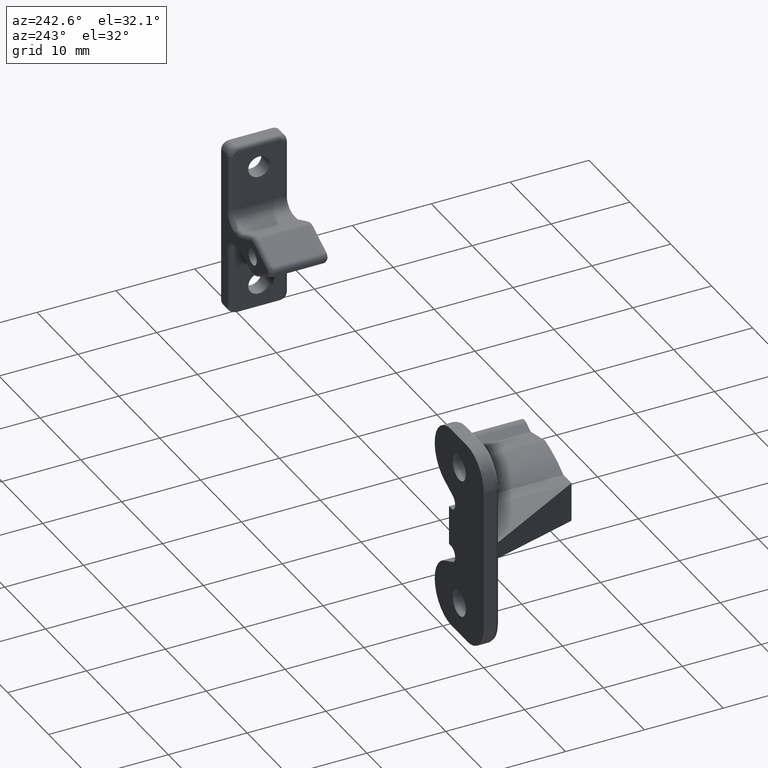
[diagram: clean part render]
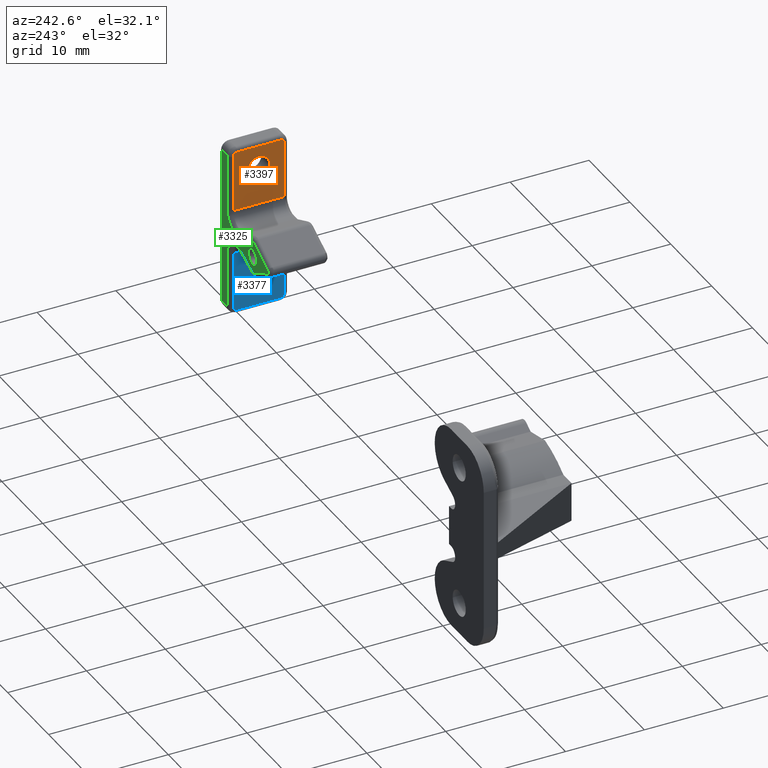
[diagram: same view with three faces highlighted in distinct colors, each labeled with its STEP entity id]
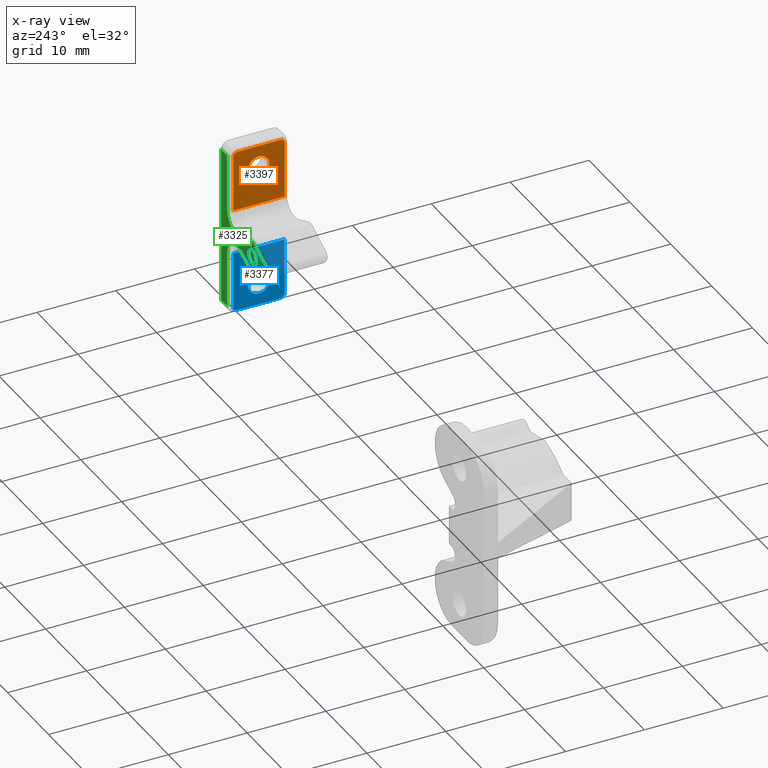
[diagram: x-ray of the same camera — body ghosted, the three highlighted faces saturated]
A machine part, auxiliary view with three faces highlighted in distinct colors.
The next image is the same camera in x-ray (body ghosted, the three faces saturated) — at least one of them is partly hidden behind the body in this view.
Their STEP definitions:

[orange] entity #3397 — the highlighted face is a freeform B-spline surface patch.
#267=CARTESIAN_POINT('',(74.781404293552868,-8.909437139445036,7.909346217089359));
#268=VERTEX_POINT('',#267);
#274=CARTESIAN_POINT('',(74.781404293552896,-10.250000000000000,6.400000000000000));
#275=VERTEX_POINT('',#274);
#276=CARTESIAN_POINT('',(74.781404293552868,-8.909437139445036,7.909346217089359));
#277=CARTESIAN_POINT('',(74.781404293552910,-8.900000000000000,7.829952561836014));
#278=CARTESIAN_POINT('',(74.781404293552896,-8.900000000000000,7.750000000000000));
#279=CARTESIAN_POINT('',(74.781404293552896,-8.900000000000000,6.400000000000000));
#280=CARTESIAN_POINT('',(74.781404293552896,-10.250000000000000,6.400000000000000));
#288=(BOUNDED_CURVE()B_SPLINE_CURVE(2,(#276,#277,#278,#279,#280),.UNSPECIFIED.,.F.,.U.)B_SPLINE_CURVE_WITH_KNOTS((3,2,3),(0.229562473439313,0.250000000000000,0.500000000000000),.UNSPECIFIED.)CURVE()GEOMETRIC_REPRESENTATION_ITEM()RATIONAL_B_SPLINE_CURVE((0.956026754038274,0.976055948244220,1.0,0.707106781186548,1.0))REPRESENTATION_ITEM(''));
#289=EDGE_CURVE('',#268,#275,#288,.T.);
#291=CARTESIAN_POINT('',(74.781404293552896,-11.597481977852460,7.667584471348922));
#292=VERTEX_POINT('',#291);
#293=CARTESIAN_POINT('',(74.781404293552896,-10.250000000000000,6.400000000000000));
#294=CARTESIAN_POINT('',(74.781404293552882,-11.519953189795775,6.400000000000000));
#295=CARTESIAN_POINT('',(74.781404293552896,-11.597481977852453,7.667584471348922));
#303=(BOUNDED_CURVE()B_SPLINE_CURVE(2,(#293,#294,#295),.UNSPECIFIED.,.F.,.U.)B_SPLINE_CURVE_WITH_KNOTS((3,3),(0.500000000000000,0.739332962170511),.UNSPECIFIED.)CURVE()GEOMETRIC_REPRESENTATION_ITEM()RATIONAL_B_SPLINE_CURVE((1.0,0.719603993366883,0.976072041520055))REPRESENTATION_ITEM(''));
#304=EDGE_CURVE('',#275,#292,#303,.T.);
#378=CARTESIAN_POINT('',(74.781404293552896,-10.250000000000000,9.100000000000000));
#379=VERTEX_POINT('',#378);
#380=CARTESIAN_POINT('',(74.781404293552896,-11.597481977852453,7.667584471348923));
#381=CARTESIAN_POINT('',(74.781404293552882,-11.600000000000005,7.708753769267101));
#382=CARTESIAN_POINT('',(74.781404293552896,-11.600000000000000,7.750000000000000));
#383=CARTESIAN_POINT('',(74.781404293552896,-11.600000000000001,9.100000000000000));
#384=CARTESIAN_POINT('',(74.781404293552896,-10.250000000000000,9.100000000000000));
#392=(BOUNDED_CURVE()B_SPLINE_CURVE(2,(#380,#381,#382,#383,#384),.UNSPECIFIED.,.F.,.U.)B_SPLINE_CURVE_WITH_KNOTS((3,2,3),(0.739332962170510,0.750000000000000,1.0),.UNSPECIFIED.)CURVE()GEOMETRIC_REPRESENTATION_ITEM()RATIONAL_B_SPLINE_CURVE((0.976072041520053,0.987502787819664,1.0,0.707106781186548,1.0))REPRESENTATION_ITEM(''));
#393=EDGE_CURVE('',#292,#379,#392,.T.);
#395=CARTESIAN_POINT('',(74.781404293552896,-10.250000000000000,9.100000000000000));
#396=CARTESIAN_POINT('',(74.781404293552896,-9.050964390511018,9.100000000000000));
#397=CARTESIAN_POINT('',(74.781404293552868,-8.909437139445036,7.909346217089359));
#405=(BOUNDED_CURVE()B_SPLINE_CURVE(2,(#395,#396,#397),.UNSPECIFIED.,.F.,.U.)B_SPLINE_CURVE_WITH_KNOTS((3,3),(0.0,0.229562473439313),.UNSPECIFIED.)CURVE()GEOMETRIC_REPRESENTATION_ITEM()RATIONAL_B_SPLINE_CURVE((1.0,0.731050832942328,0.956026754038274))REPRESENTATION_ITEM(''));
#406=EDGE_CURVE('',#379,#268,#405,.T.);
#983=CARTESIAN_POINT('',(74.781404293552896,-7.500000000000000,10.500000000000000));
#984=VERTEX_POINT('',#983);
#1013=CARTESIAN_POINT('',(74.781404293552896,-7.000000000000120,10.0));
#1014=VERTEX_POINT('',#1013);
#1028=CARTESIAN_POINT('',(74.781404293552896,-6.999999999999999,10.0));
#1029=CARTESIAN_POINT('',(74.781404293552896,-6.999999999999999,10.500000000000002));
#1030=CARTESIAN_POINT('',(74.781404293552896,-7.500000000000000,10.500000000000000));
#1038=(BOUNDED_CURVE()B_SPLINE_CURVE(2,(#1028,#1029,#1030),.UNSPECIFIED.,.F.,.U.)CURVE()GEOMETRIC_REPRESENTATION_ITEM()QUASI_UNIFORM_CURVE()RATIONAL_B_SPLINE_CURVE((1.0,0.707106781186548,1.0))REPRESENTATION_ITEM(''));
#1039=EDGE_CURVE('',#1014,#984,#1038,.T.);
#1132=CARTESIAN_POINT('',(74.781404293552896,-13.000000000000121,10.500000000000000));
#1133=VERTEX_POINT('',#1132);
#1149=CARTESIAN_POINT('',(74.781404293552896,-13.500000000000000,10.0));
#1150=VERTEX_POINT('',#1149);
#1151=CARTESIAN_POINT('',(74.781404293552896,-13.000000000000121,10.500000000000000));
#1152=CARTESIAN_POINT('',(74.781404293552910,-13.500000000000000,10.499999999999881));
#1153=CARTESIAN_POINT('',(74.781404293552896,-13.500000000000000,10.0));
#1161=(BOUNDED_CURVE()B_SPLINE_CURVE(2,(#1151,#1152,#1153),.UNSPECIFIED.,.F.,.U.)CURVE()GEOMETRIC_REPRESENTATION_ITEM()QUASI_UNIFORM_CURVE()RATIONAL_B_SPLINE_CURVE((1.0,0.707106781186632,1.0))REPRESENTATION_ITEM(''));
#1162=EDGE_CURVE('',#1133,#1150,#1161,.T.);
#1573=CARTESIAN_POINT('',(74.781404293552896,-13.000000000000121,10.500000000000000));
#1574=CARTESIAN_POINT('',(74.781404293552896,-7.500000000000000,10.500000000000000));
#1575=QUASI_UNIFORM_CURVE('',1,(#1573,#1574),.UNSPECIFIED.,.F.,.U.);
#1576=EDGE_CURVE('',#1133,#984,#1575,.T.);
#2313=CARTESIAN_POINT('',(74.781404293552896,-7.000000000000120,2.849976000000000));
#2314=VERTEX_POINT('',#2313);
#2448=CARTESIAN_POINT('',(74.781404293552896,-7.000000000000120,10.0));
#2449=CARTESIAN_POINT('',(74.781404293552896,-7.000000000000120,2.849976000000000));
#2450=QUASI_UNIFORM_CURVE('',1,(#2448,#2449),.UNSPECIFIED.,.F.,.U.);
#2451=EDGE_CURVE('',#1014,#2314,#2450,.T.);
#2482=CARTESIAN_POINT('',(74.781404293552896,-13.500000000000000,2.849976000000000));
#2483=VERTEX_POINT('',#2482);
#2594=CARTESIAN_POINT('',(74.781404293552896,-13.500000000000000,2.849976000000000));
#2595=CARTESIAN_POINT('',(74.781404293552896,-13.500000000000000,10.0));
#2596=QUASI_UNIFORM_CURVE('',1,(#2594,#2595),.UNSPECIFIED.,.F.,.U.);
#2597=EDGE_CURVE('',#2483,#1150,#2596,.T.);
#3049=CARTESIAN_POINT('',(74.781404293552896,-13.500000000000000,2.849976000000000));
#3050=CARTESIAN_POINT('',(74.781404293552896,-7.000000000000120,2.849976000000000));
#3051=QUASI_UNIFORM_CURVE('',1,(#3049,#3050),.UNSPECIFIED.,.F.,.U.);
#3052=EDGE_CURVE('',#2483,#2314,#3051,.T.);
#3378=CARTESIAN_POINT('',(74.781404293552896,-13.824674987401730,10.882118683972770));
#3379=CARTESIAN_POINT('',(74.781404293552896,-13.824674987401730,2.467857110837597));
#3380=CARTESIAN_POINT('',(74.781404293552896,-6.675324838254800,10.882118683972770));
#3381=CARTESIAN_POINT('',(74.781404293552896,-6.675324838254800,2.467857110837597));
#3382=B_SPLINE_SURFACE_WITH_KNOTS('',1,1,((#3378,#3380),(#3379,#3381)),.UNSPECIFIED.,.F.,.F.,.U.,(2,2),(2,2),(0.0,8.414261573135173),(0.0,7.149350149146932),.UNSPECIFIED.);
#3383=ORIENTED_EDGE('',*,*,#1162,.F.);
#3384=ORIENTED_EDGE('',*,*,#1576,.T.);
#3385=ORIENTED_EDGE('',*,*,#1039,.F.);
#3386=ORIENTED_EDGE('',*,*,#2451,.T.);
#3387=ORIENTED_EDGE('',*,*,#3052,.F.);
#3388=ORIENTED_EDGE('',*,*,#2597,.T.);
#3389=EDGE_LOOP('',(#3383,#3384,#3385,#3386,#3387,#3388));
#3390=FACE_OUTER_BOUND('',#3389,.T.);
#3391=ORIENTED_EDGE('',*,*,#304,.F.);
#3392=ORIENTED_EDGE('',*,*,#289,.F.);
#3393=ORIENTED_EDGE('',*,*,#406,.F.);
#3394=ORIENTED_EDGE('',*,*,#393,.F.);
#3395=EDGE_LOOP('',(#3391,#3392,#3393,#3394));
#3396=FACE_BOUND('',#3395,.T.);
#3397=ADVANCED_FACE('',(#3390,#3396),#3382,.F.);

[blue] entity #3377 — the highlighted face is a freeform B-spline surface patch.
#79=CARTESIAN_POINT('',(74.781404293552896,-8.904161599466004,-7.855919779305352));
#80=VERTEX_POINT('',#79);
#86=CARTESIAN_POINT('',(74.781404293552896,-10.250000000000000,-9.100000000000000));
#87=VERTEX_POINT('',#86);
#88=CARTESIAN_POINT('',(74.781404293552896,-10.250000000000000,-9.100000000000000));
#89=CARTESIAN_POINT('',(74.781404293552896,-9.002072836396774,-9.100000000000000));
#90=CARTESIAN_POINT('',(74.781404293552896,-8.904161599466004,-7.855919779305352));
#98=(BOUNDED_CURVE()B_SPLINE_CURVE(2,(#88,#89,#90),.UNSPECIFIED.,.F.,.U.)B_SPLINE_CURVE_WITH_KNOTS((3,3),(0.0,0.236331300614231),.UNSPECIFIED.)CURVE()GEOMETRIC_REPRESENTATION_ITEM()RATIONAL_B_SPLINE_CURVE((1.0,0.723120658626913,0.969723356133133))REPRESENTATION_ITEM(''));
#99=EDGE_CURVE('',#87,#80,#98,.T.);
#101=CARTESIAN_POINT('',(74.781404293552896,-11.595838400533999,-7.644080220694649));
#102=VERTEX_POINT('',#101);
#103=CARTESIAN_POINT('',(74.781404293552896,-11.595838400533999,-7.644080220694649));
#104=CARTESIAN_POINT('',(74.781404293552896,-11.600000000000005,-7.696958355466547));
#105=CARTESIAN_POINT('',(74.781404293552896,-11.600000000000000,-7.750000000000000));
#106=CARTESIAN_POINT('',(74.781404293552896,-11.600000000000001,-9.100000000000000));
#107=CARTESIAN_POINT('',(74.781404293552896,-10.250000000000000,-9.100000000000000));
#115=(BOUNDED_CURVE()B_SPLINE_CURVE(2,(#103,#104,#105,#106,#107),.UNSPECIFIED.,.F.,.U.)B_SPLINE_CURVE_WITH_KNOTS((3,2,3),(0.736331300614231,0.750000000000000,1.0),.UNSPECIFIED.)CURVE()GEOMETRIC_REPRESENTATION_ITEM()RATIONAL_B_SPLINE_CURVE((0.969723356133133,0.983986122559635,1.0,0.707106781186548,1.0))REPRESENTATION_ITEM(''));
#116=EDGE_CURVE('',#102,#87,#115,.T.);
#192=CARTESIAN_POINT('',(74.781404293552896,-10.250000000000000,-6.400000000000000));
#193=VERTEX_POINT('',#192);
#194=CARTESIAN_POINT('',(74.781404293552896,-10.250000000000000,-6.400000000000000));
#195=CARTESIAN_POINT('',(74.781404293552896,-11.497927163603235,-6.400000000000000));
#196=CARTESIAN_POINT('',(74.781404293552896,-11.595838400533999,-7.644080220694649));
#204=(BOUNDED_CURVE()B_SPLINE_CURVE(2,(#194,#195,#196),.UNSPECIFIED.,.F.,.U.)B_SPLINE_CURVE_WITH_KNOTS((3,3),(0.500000000000000,0.736331300614232),.UNSPECIFIED.)CURVE()GEOMETRIC_REPRESENTATION_ITEM()RATIONAL_B_SPLINE_CURVE((1.0,0.723120658626912,0.969723356133135))REPRESENTATION_ITEM(''));
#205=EDGE_CURVE('',#193,#102,#204,.T.);
#207=CARTESIAN_POINT('',(74.781404293552896,-8.904161599466004,-7.855919779305352));
#208=CARTESIAN_POINT('',(74.781404293552896,-8.900000000000002,-7.803041644533454));
#209=CARTESIAN_POINT('',(74.781404293552896,-8.900000000000000,-7.750000000000000));
#210=CARTESIAN_POINT('',(74.781404293552896,-8.900000000000000,-6.400000000000000));
#211=CARTESIAN_POINT('',(74.781404293552896,-10.250000000000000,-6.400000000000000));
#219=(BOUNDED_CURVE()B_SPLINE_CURVE(2,(#207,#208,#209,#210,#211),.UNSPECIFIED.,.F.,.U.)B_SPLINE_CURVE_WITH_KNOTS((3,2,3),(0.236331300614231,0.250000000000000,0.500000000000000),.UNSPECIFIED.)CURVE()GEOMETRIC_REPRESENTATION_ITEM()RATIONAL_B_SPLINE_CURVE((0.969723356133133,0.983986122559635,1.0,0.707106781186548,1.0))REPRESENTATION_ITEM(''));
#220=EDGE_CURVE('',#80,#193,#219,.T.);
#1273=CARTESIAN_POINT('',(74.781404293552896,-7.500000000000000,-10.500000000000000));
#1274=VERTEX_POINT('',#1273);
#1290=CARTESIAN_POINT('',(74.781404293552896,-7.000000000000120,-10.0));
#1291=VERTEX_POINT('',#1290);
#1292=CARTESIAN_POINT('',(74.781404293552896,-7.500000000000000,-10.500000000000000));
#1293=CARTESIAN_POINT('',(74.781404293552896,-6.999999999999999,-10.500000000000002));
#1294=CARTESIAN_POINT('',(74.781404293552896,-6.999999999999999,-10.0));
#1302=(BOUNDED_CURVE()B_SPLINE_CURVE(2,(#1292,#1293,#1294),.UNSPECIFIED.,.F.,.U.)CURVE()GEOMETRIC_REPRESENTATION_ITEM()QUASI_UNIFORM_CURVE()RATIONAL_B_SPLINE_CURVE((1.0,0.707106781186548,1.0))REPRESENTATION_ITEM(''));
#1303=EDGE_CURVE('',#1274,#1291,#1302,.T.);
#1418=CARTESIAN_POINT('',(74.781404293552896,-13.0,-10.500000000000000));
#1419=VERTEX_POINT('',#1418);
#1448=CARTESIAN_POINT('',(74.781404293552896,-13.500000000000000,-10.0));
#1449=VERTEX_POINT('',#1448);
#1463=CARTESIAN_POINT('',(74.781404293552896,-13.500000000000000,-10.0));
#1464=CARTESIAN_POINT('',(74.781404293552896,-13.500000000000000,-10.500000000000002));
#1465=CARTESIAN_POINT('',(74.781404293552896,-13.0,-10.500000000000000));
#1473=(BOUNDED_CURVE()B_SPLINE_CURVE(2,(#1463,#1464,#1465),.UNSPECIFIED.,.F.,.U.)CURVE()GEOMETRIC_REPRESENTATION_ITEM()QUASI_UNIFORM_CURVE()RATIONAL_B_SPLINE_CURVE((1.0,0.707106781186548,1.0))REPRESENTATION_ITEM(''));
#1474=EDGE_CURVE('',#1449,#1419,#1473,.T.);
#1544=CARTESIAN_POINT('',(74.781404293552896,-7.500000000000000,-10.500000000000000));
#1545=CARTESIAN_POINT('',(74.781404293552896,-13.0,-10.500000000000000));
#1546=QUASI_UNIFORM_CURVE('',1,(#1544,#1545),.UNSPECIFIED.,.F.,.U.);
#1547=EDGE_CURVE('',#1274,#1419,#1546,.T.);
#1953=CARTESIAN_POINT('',(74.781398293552996,-7.000000000000120,-2.850006000000000));
#1954=VERTEX_POINT('',#1953);
#2065=CARTESIAN_POINT('',(74.781398293552996,-7.000000000000120,-2.850006000000000));
#2066=CARTESIAN_POINT('',(74.781404293552896,-7.000000000000120,-10.0));
#2067=QUASI_UNIFORM_CURVE('',1,(#2065,#2066),.UNSPECIFIED.,.F.,.U.);
#2068=EDGE_CURVE('',#1954,#1291,#2067,.T.);
#2927=CARTESIAN_POINT('',(74.781398293552996,-13.500000000000000,-2.850006000000000));
#2928=VERTEX_POINT('',#2927);
#2988=CARTESIAN_POINT('',(74.781404293552896,-13.500000000000000,-10.0));
#2989=CARTESIAN_POINT('',(74.781398293552996,-13.500000000000000,-2.850006000000000));
#2990=QUASI_UNIFORM_CURVE('',1,(#2988,#2989),.UNSPECIFIED.,.F.,.U.);
#2991=EDGE_CURVE('',#1449,#2928,#2990,.T.);
#3148=CARTESIAN_POINT('',(74.781398293552996,-13.500000000000000,-2.850006000000000));
#3149=CARTESIAN_POINT('',(74.781398293552996,-7.000000000000120,-2.850006000000000));
#3150=QUASI_UNIFORM_CURVE('',1,(#3148,#3149),.UNSPECIFIED.,.F.,.U.);
#3151=EDGE_CURVE('',#2928,#1954,#3150,.T.);
#3358=CARTESIAN_POINT('',(74.781404293552896,-13.824674987401730,-2.467888886339843));
#3359=CARTESIAN_POINT('',(74.781404293552896,-13.824674987401730,-10.882117387245261));
#3360=CARTESIAN_POINT('',(74.781404293552896,-6.675324838254800,-2.467888886339843));
#3361=CARTESIAN_POINT('',(74.781404293552896,-6.675324838254800,-10.882117387245261));
#3362=B_SPLINE_SURFACE_WITH_KNOTS('',1,1,((#3358,#3360),(#3359,#3361)),.UNSPECIFIED.,.F.,.F.,.U.,(2,2),(2,2),(0.0,8.414228500905418),(0.0,7.149350149146932),.UNSPECIFIED.);
#3363=ORIENTED_EDGE('',*,*,#1474,.F.);
#3364=ORIENTED_EDGE('',*,*,#2991,.T.);
#3365=ORIENTED_EDGE('',*,*,#3151,.T.);
#3366=ORIENTED_EDGE('',*,*,#2068,.T.);
#3367=ORIENTED_EDGE('',*,*,#1303,.F.);
#3368=ORIENTED_EDGE('',*,*,#1547,.T.);
#3369=EDGE_LOOP('',(#3363,#3364,#3365,#3366,#3367,#3368));
#3370=FACE_OUTER_BOUND('',#3369,.T.);
#3371=ORIENTED_EDGE('',*,*,#205,.T.);
#3372=ORIENTED_EDGE('',*,*,#116,.T.);
#3373=ORIENTED_EDGE('',*,*,#99,.T.);
#3374=ORIENTED_EDGE('',*,*,#220,.T.);
#3375=EDGE_LOOP('',(#3371,#3372,#3373,#3374));
#3376=FACE_BOUND('',#3375,.T.);
#3377=ADVANCED_FACE('',(#3370,#3376),#3362,.F.);

[green] entity #3325 — the highlighted face is a freeform B-spline surface patch.
#430=CARTESIAN_POINT('',(69.081407293552900,-6.500000000000170,1.0));
#431=VERTEX_POINT('',#430);
#432=CARTESIAN_POINT('',(68.084489959867142,-6.500000000000170,0.078459096329595));
#433=VERTEX_POINT('',#432);
#434=CARTESIAN_POINT('',(69.081407293552900,-6.500000000000170,1.0));
#435=CARTESIAN_POINT('',(68.157016803014088,-6.500000000000169,1.0));
#436=CARTESIAN_POINT('',(68.084489959867142,-6.500000000000170,0.078459096329595));
#444=(BOUNDED_CURVE()B_SPLINE_CURVE(2,(#434,#435,#436),.UNSPECIFIED.,.F.,.U.)B_SPLINE_CURVE_WITH_KNOTS((3,3),(0.0,0.236331300425819),.UNSPECIFIED.)CURVE()GEOMETRIC_REPRESENTATION_ITEM()RATIONAL_B_SPLINE_CURVE((1.0,0.723120658847651,0.969723355739932))REPRESENTATION_ITEM(''));
#445=EDGE_CURVE('',#431,#433,#444,.T.);
#447=CARTESIAN_POINT('',(70.078324627238658,-6.500000000000171,-0.078459096329595));
#448=VERTEX_POINT('',#447);
#449=CARTESIAN_POINT('',(70.078324627238658,-6.500000000000171,-0.078459096329595));
#450=CARTESIAN_POINT('',(70.081407293552900,-6.500000000000170,-0.039290107612212));
#451=CARTESIAN_POINT('',(70.081407293552900,-6.500000000000170,0.0));
#452=CARTESIAN_POINT('',(70.081407293552900,-6.500000000000169,1.0));
#453=CARTESIAN_POINT('',(69.081407293552900,-6.500000000000170,1.0));
#461=(BOUNDED_CURVE()B_SPLINE_CURVE(2,(#449,#450,#451,#452,#453),.UNSPECIFIED.,.F.,.U.)B_SPLINE_CURVE_WITH_KNOTS((3,2,3),(0.736331300425820,0.750000000000000,1.0),.UNSPECIFIED.)CURVE()GEOMETRIC_REPRESENTATION_ITEM()RATIONAL_B_SPLINE_CURVE((0.969723355739932,0.983986122338897,1.0,0.707106781186548,1.0))REPRESENTATION_ITEM(''));
#462=EDGE_CURVE('',#448,#431,#461,.T.);
#529=CARTESIAN_POINT('',(69.081407293552900,-6.500000000000170,-1.0));
#530=VERTEX_POINT('',#529);
#531=CARTESIAN_POINT('',(68.084489959867142,-6.500000000000170,0.078459096329595));
#532=CARTESIAN_POINT('',(68.081407293552900,-6.500000000000170,0.039290107612212));
#533=CARTESIAN_POINT('',(68.081407293552900,-6.500000000000170,0.0));
#534=CARTESIAN_POINT('',(68.081407293552900,-6.500000000000169,-1.0));
#535=CARTESIAN_POINT('',(69.081407293552900,-6.500000000000170,-1.0));
#543=(BOUNDED_CURVE()B_SPLINE_CURVE(2,(#531,#532,#533,#534,#535),.UNSPECIFIED.,.F.,.U.)B_SPLINE_CURVE_WITH_KNOTS((3,2,3),(0.236331300425820,0.250000000000000,0.500000000000000),.UNSPECIFIED.)CURVE()GEOMETRIC_REPRESENTATION_ITEM()RATIONAL_B_SPLINE_CURVE((0.969723355739932,0.983986122338897,1.0,0.707106781186548,1.0))REPRESENTATION_ITEM(''));
#544=EDGE_CURVE('',#433,#530,#543,.T.);
#578=CARTESIAN_POINT('',(69.081407293552900,-6.500000000000170,-1.0));
#579=CARTESIAN_POINT('',(70.005797784091726,-6.500000000000169,-1.0));
#580=CARTESIAN_POINT('',(70.078324627238658,-6.500000000000171,-0.078459096329595));
#588=(BOUNDED_CURVE()B_SPLINE_CURVE(2,(#578,#579,#580),.UNSPECIFIED.,.F.,.U.)B_SPLINE_CURVE_WITH_KNOTS((3,3),(0.500000000000000,0.736331300425821),.UNSPECIFIED.)CURVE()GEOMETRIC_REPRESENTATION_ITEM()RATIONAL_B_SPLINE_CURVE((1.0,0.723120658847650,0.969723355739934))REPRESENTATION_ITEM(''));
#589=EDGE_CURVE('',#530,#448,#588,.T.);
#640=CARTESIAN_POINT('',(69.081384218248175,-6.500000000000105,2.050000829597402));
#641=VERTEX_POINT('',#640);
#657=CARTESIAN_POINT('',(68.852169493230889,-6.500000000000090,1.994362549565610));
#658=VERTEX_POINT('',#657);
#659=CARTESIAN_POINT('',(68.852169493230903,-6.500000000000090,1.994362549565582));
#660=CARTESIAN_POINT('',(68.960024193398795,-6.500000000000090,2.050000838512738));
#661=CARTESIAN_POINT('',(69.081384218248175,-6.500000000000105,2.050000829597402));
#669=(BOUNDED_CURVE()B_SPLINE_CURVE(2,(#659,#660,#661),.UNSPECIFIED.,.F.,.U.)B_SPLINE_CURVE_WITH_KNOTS((3,3),(0.0,0.532488025251343),.UNSPECIFIED.)CURVE()GEOMETRIC_REPRESENTATION_ITEM()RATIONAL_B_SPLINE_CURVE((1.0,0.947741838454572,0.951137367398325))REPRESENTATION_ITEM(''));
#670=EDGE_CURVE('',#658,#641,#669,.T.);
#734=CARTESIAN_POINT('',(69.283986150942994,-6.500000000000090,2.007118662710400));
#735=VERTEX_POINT('',#734);
#751=CARTESIAN_POINT('',(69.081384218248175,-6.500000000000105,2.050000829597402));
#752=CARTESIAN_POINT('',(69.187224719983249,-6.500000000000097,2.050003931687976));
#753=CARTESIAN_POINT('',(69.283986150942994,-6.500000000000090,2.007118662710400));
#761=(BOUNDED_CURVE()B_SPLINE_CURVE(2,(#751,#752,#753),.UNSPECIFIED.,.F.,.U.)B_SPLINE_CURVE_WITH_KNOTS((3,3),(0.532488025251343,1.0),.UNSPECIFIED.)CURVE()GEOMETRIC_REPRESENTATION_ITEM()RATIONAL_B_SPLINE_CURVE((0.951137367398325,0.954118562029061,1.0))REPRESENTATION_ITEM(''));
#762=EDGE_CURVE('',#641,#735,#761,.T.);
#998=CARTESIAN_POINT('',(75.281404293552896,-6.500000000000090,10.0));
#999=VERTEX_POINT('',#998);
#1058=CARTESIAN_POINT('',(76.781404293552896,-6.500000000000170,10.0));
#1059=VERTEX_POINT('',#1058);
#1075=CARTESIAN_POINT('',(75.281404293552896,-6.500000000000090,10.0));
#1076=CARTESIAN_POINT('',(76.781404293552896,-6.500000000000170,10.0));
#1077=QUASI_UNIFORM_CURVE('',1,(#1075,#1076),.UNSPECIFIED.,.F.,.U.);
#1078=EDGE_CURVE('',#999,#1059,#1077,.T.);
#1305=CARTESIAN_POINT('',(75.281404293552896,-6.500000000000090,-10.0));
#1306=VERTEX_POINT('',#1305);
#1354=CARTESIAN_POINT('',(76.781404293552896,-6.500000000000170,-10.0));
#1355=VERTEX_POINT('',#1354);
#1375=CARTESIAN_POINT('',(76.781404293552896,-6.500000000000170,-10.0));
#1376=CARTESIAN_POINT('',(75.281404293552896,-6.500000000000090,-10.0));
#1377=QUASI_UNIFORM_CURVE('',1,(#1375,#1376),.UNSPECIFIED.,.F.,.U.);
#1378=EDGE_CURVE('',#1355,#1306,#1377,.T.);
#1598=CARTESIAN_POINT('',(65.414786707454496,-6.500000000000090,-0.221134209503107));
#1599=VERTEX_POINT('',#1598);
#1615=CARTESIAN_POINT('',(68.855726899929806,-6.500000000000090,-1.996197686214415));
#1616=VERTEX_POINT('',#1615);
#1617=CARTESIAN_POINT('',(68.855726899929806,-6.500000000000090,-1.996197686214415));
#1618=CARTESIAN_POINT('',(65.414786707454496,-6.500000000000090,-0.221134209503107));
#1619=QUASI_UNIFORM_CURVE('',1,(#1617,#1618),.UNSPECIFIED.,.F.,.U.);
#1620=EDGE_CURVE('',#1616,#1599,#1619,.T.);
#1678=CARTESIAN_POINT('',(69.280651325574993,-6.500000000000090,-2.008604759189170));
#1679=VERTEX_POINT('',#1678);
#1711=CARTESIAN_POINT('',(69.280651325574993,-6.500000000000090,-2.008604759189170));
#1712=CARTESIAN_POINT('',(69.065273951286187,-6.500000000000090,-2.102183400857805));
#1713=CARTESIAN_POINT('',(68.855726899929806,-6.500000000000090,-1.996197686214415));
#1721=(BOUNDED_CURVE()B_SPLINE_CURVE(2,(#1711,#1712,#1713),.UNSPECIFIED.,.F.,.U.)CURVE()GEOMETRIC_REPRESENTATION_ITEM()QUASI_UNIFORM_CURVE()RATIONAL_B_SPLINE_CURVE((1.0,0.905145386817233,1.0))REPRESENTATION_ITEM(''));
#1722=EDGE_CURVE('',#1679,#1616,#1721,.T.);
#1762=CARTESIAN_POINT('',(65.416215930984308,-6.500000000000090,0.221880153980329));
#1763=VERTEX_POINT('',#1762);
#1779=CARTESIAN_POINT('',(65.414786707454496,-6.500000000000090,-0.221134209503107));
#1780=CARTESIAN_POINT('',(65.280917728513742,-6.500000000000090,-0.150537084976274));
#1781=CARTESIAN_POINT('',(65.281405979418992,-6.500000000000090,0.000805346413030));
#1782=CARTESIAN_POINT('',(65.281894230324241,-6.500000000000090,0.152147777802334));
#1783=CARTESIAN_POINT('',(65.416215930984308,-6.500000000000090,0.221880153980329));
#1791=(BOUNDED_CURVE()B_SPLINE_CURVE(2,(#1779,#1780,#1781,#1782,#1783),.UNSPECIFIED.,.F.,.U.)B_SPLINE_CURVE_WITH_KNOTS((3,2,3),(0.0,0.500000000000000,1.0),.UNSPECIFIED.)CURVE()GEOMETRIC_REPRESENTATION_ITEM()RATIONAL_B_SPLINE_CURVE((1.0,0.855457729092831,1.0,0.855457729092831,1.0))REPRESENTATION_ITEM(''));
#1792=EDGE_CURVE('',#1599,#1763,#1791,.T.);
#1827=CARTESIAN_POINT('',(72.177549066413903,-6.500000000000090,-0.750000000000000));
#1828=VERTEX_POINT('',#1827);
#1850=CARTESIAN_POINT('',(72.177549066413903,-6.500000000000090,-0.750000000000000));
#1851=CARTESIAN_POINT('',(69.280651325574993,-6.500000000000090,-2.008604759189170));
#1852=QUASI_UNIFORM_CURVE('',1,(#1850,#1851),.UNSPECIFIED.,.F.,.U.);
#1853=EDGE_CURVE('',#1828,#1679,#1852,.T.);
#1873=CARTESIAN_POINT('',(65.416215930984308,-6.500000000000090,0.221880153980329));
#1874=CARTESIAN_POINT('',(68.852169493230889,-6.500000000000090,1.994362549565610));
#1875=QUASI_UNIFORM_CURVE('',1,(#1873,#1874),.UNSPECIFIED.,.F.,.U.);
#1876=EDGE_CURVE('',#1763,#658,#1875,.T.);
#1901=CARTESIAN_POINT('',(73.181398293553087,-6.500000000000090,-0.750000000000000));
#1902=VERTEX_POINT('',#1901);
#1926=CARTESIAN_POINT('',(73.181398293553087,-6.500000000000090,-0.750000000000000));
#1927=CARTESIAN_POINT('',(72.177549066413903,-6.500000000000090,-0.750000000000000));
#1928=QUASI_UNIFORM_CURVE('',1,(#1926,#1927),.UNSPECIFIED.,.F.,.U.);
#1929=EDGE_CURVE('',#1902,#1828,#1928,.T.);
#1951=CARTESIAN_POINT('',(75.281398293552996,-6.500000000000090,-2.850006000000000));
#1952=VERTEX_POINT('',#1951);
#1982=CARTESIAN_POINT('',(75.281398293552996,-6.500000000000090,-2.850006000000000));
#1983=CARTESIAN_POINT('',(75.281398293553039,-6.500000000000089,-0.750003000000000));
#1984=CARTESIAN_POINT('',(73.181398293553087,-6.500000000000090,-0.750000000000000));
#1992=(BOUNDED_CURVE()B_SPLINE_CURVE(2,(#1982,#1983,#1984),.UNSPECIFIED.,.F.,.U.)CURVE()GEOMETRIC_REPRESENTATION_ITEM()QUASI_UNIFORM_CURVE()RATIONAL_B_SPLINE_CURVE((1.0,0.707106781186548,1.0))REPRESENTATION_ITEM(''));
#1993=EDGE_CURVE('',#1952,#1902,#1992,.T.);
#2014=CARTESIAN_POINT('',(71.986847784162592,-6.500000000000090,0.832823064101919));
#2015=VERTEX_POINT('',#2014);
#2031=CARTESIAN_POINT('',(69.283986150942994,-6.500000000000090,2.007118662710400));
#2032=CARTESIAN_POINT('',(71.986847784162592,-6.500000000000090,0.832823064101919));
#2033=QUASI_UNIFORM_CURVE('',1,(#2031,#2032),.UNSPECIFIED.,.F.,.U.);
#2034=EDGE_CURVE('',#735,#2015,#2033,.T.);
#2059=CARTESIAN_POINT('',(75.281404293552896,-6.500000000000090,-10.0));
#2060=CARTESIAN_POINT('',(75.281398293552996,-6.500000000000090,-2.850006000000000));
#2061=QUASI_UNIFORM_CURVE('',1,(#2059,#2060),.UNSPECIFIED.,.F.,.U.);
#2062=EDGE_CURVE('',#1306,#1952,#2061,.T.);
#2093=CARTESIAN_POINT('',(72.385327982236007,-6.500000000000090,0.750000000000000));
#2094=VERTEX_POINT('',#2093);
#2108=CARTESIAN_POINT('',(72.385327982236007,-6.500000000000090,0.750000000000000));
#2109=CARTESIAN_POINT('',(72.177480604869785,-6.500000000000090,0.750000000000000));
#2110=CARTESIAN_POINT('',(71.986847784162592,-6.500000000000090,0.832823064101927));
#2118=(BOUNDED_CURVE()B_SPLINE_CURVE(2,(#2108,#2109,#2110),.UNSPECIFIED.,.F.,.U.)CURVE()GEOMETRIC_REPRESENTATION_ITEM()QUASI_UNIFORM_CURVE()RATIONAL_B_SPLINE_CURVE((1.0,0.979075312705328,1.0))REPRESENTATION_ITEM(''));
#2119=EDGE_CURVE('',#2094,#2015,#2118,.T.);
#2199=CARTESIAN_POINT('',(73.190161845461702,-6.500000000000090,0.749994285756267));
#2200=VERTEX_POINT('',#2199);
#2216=CARTESIAN_POINT('',(72.385327982236007,-6.500000000000090,0.750000000000000));
#2217=CARTESIAN_POINT('',(73.190161845461702,-6.500000000000090,0.749994285756267));
#2218=QUASI_UNIFORM_CURVE('',1,(#2216,#2217),.UNSPECIFIED.,.F.,.U.);
#2219=EDGE_CURVE('',#2094,#2200,#2218,.T.);
#2315=CARTESIAN_POINT('',(75.281404293552896,-6.500000000000090,2.849976000000000));
#2316=VERTEX_POINT('',#2315);
#2330=CARTESIAN_POINT('',(73.190161845461702,-6.500000000000090,0.749994285756267));
#2331=CARTESIAN_POINT('',(75.281401293552975,-6.500000000000090,0.758721342302401));
#2332=CARTESIAN_POINT('',(75.281404293552896,-6.500000000000090,2.849976000000000));
#2340=(BOUNDED_CURVE()B_SPLINE_CURVE(2,(#2330,#2331,#2332),.UNSPECIFIED.,.F.,.U.)CURVE()GEOMETRIC_REPRESENTATION_ITEM()QUASI_UNIFORM_CURVE()RATIONAL_B_SPLINE_CURVE((1.0,0.708580665823053,1.0))REPRESENTATION_ITEM(''));
#2341=EDGE_CURVE('',#2200,#2316,#2340,.T.);
#2454=CARTESIAN_POINT('',(75.281404293552896,-6.500000000000090,2.849976000000000));
#2455=CARTESIAN_POINT('',(75.281404293552896,-6.500000000000090,10.0));
#2456=QUASI_UNIFORM_CURVE('',1,(#2454,#2455),.UNSPECIFIED.,.F.,.U.);
#2457=EDGE_CURVE('',#2316,#999,#2456,.T.);
#3081=CARTESIAN_POINT('',(76.781404293552896,-6.500000000000170,-10.0));
#3082=CARTESIAN_POINT('',(76.781404293552896,-6.500000000000170,10.0));
#3083=QUASI_UNIFORM_CURVE('',1,(#3081,#3082),.UNSPECIFIED.,.F.,.U.);
#3084=EDGE_CURVE('',#1355,#1059,#3083,.T.);
#3294=CARTESIAN_POINT('',(64.706977606193888,-6.500000000000090,10.998999961236120));
#3295=CARTESIAN_POINT('',(77.355827937701093,-6.500000000000090,10.998999961236120));
#3296=CARTESIAN_POINT('',(64.706977606193888,-6.500000000000090,-10.999000497677921));
#3297=CARTESIAN_POINT('',(77.355827937701093,-6.500000000000090,-10.999000497677921));
#3298=B_SPLINE_SURFACE_WITH_KNOTS('',1,1,((#3294,#3296),(#3295,#3297)),.UNSPECIFIED.,.F.,.F.,.U.,(2,2),(2,2),(0.0,12.648850331507210),(0.0,21.998000458914039),.UNSPECIFIED.);
#3299=ORIENTED_EDGE('',*,*,#2457,.T.);
#3300=ORIENTED_EDGE('',*,*,#1078,.T.);
#3301=ORIENTED_EDGE('',*,*,#3084,.F.);
#3302=ORIENTED_EDGE('',*,*,#1378,.T.);
#3303=ORIENTED_EDGE('',*,*,#2062,.T.);
#3304=ORIENTED_EDGE('',*,*,#1993,.T.);
#3305=ORIENTED_EDGE('',*,*,#1929,.T.);
#3306=ORIENTED_EDGE('',*,*,#1853,.T.);
#3307=ORIENTED_EDGE('',*,*,#1722,.T.);
#3308=ORIENTED_EDGE('',*,*,#1620,.T.);
#3309=ORIENTED_EDGE('',*,*,#1792,.T.);
#3310=ORIENTED_EDGE('',*,*,#1876,.T.);
#3311=ORIENTED_EDGE('',*,*,#670,.T.);
#3312=ORIENTED_EDGE('',*,*,#762,.T.);
#3313=ORIENTED_EDGE('',*,*,#2034,.T.);
#3314=ORIENTED_EDGE('',*,*,#2119,.F.);
#3315=ORIENTED_EDGE('',*,*,#2219,.T.);
#3316=ORIENTED_EDGE('',*,*,#2341,.T.);
#3317=EDGE_LOOP('',(#3299,#3300,#3301,#3302,#3303,#3304,#3305,#3306,#3307,#3308,#3309,#3310,#3311,#3312,#3313,#3314,#3315,#3316));
#3318=FACE_OUTER_BOUND('',#3317,.T.);
#3319=ORIENTED_EDGE('',*,*,#589,.T.);
#3320=ORIENTED_EDGE('',*,*,#462,.T.);
#3321=ORIENTED_EDGE('',*,*,#445,.T.);
#3322=ORIENTED_EDGE('',*,*,#544,.T.);
#3323=EDGE_LOOP('',(#3319,#3320,#3321,#3322));
#3324=FACE_BOUND('',#3323,.T.);
#3325=ADVANCED_FACE('',(#3318,#3324),#3298,.T.);